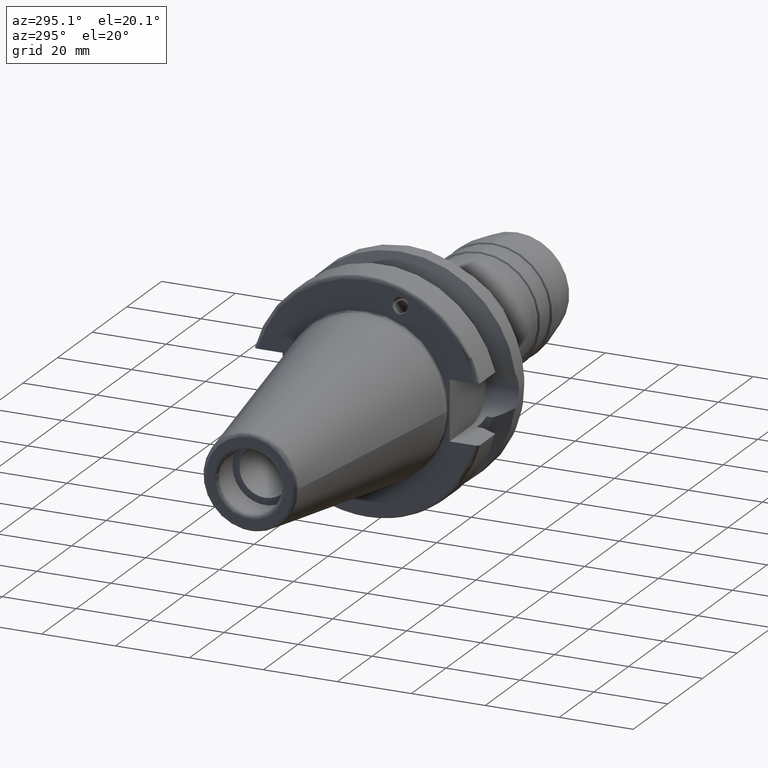
[diagram: clean part render]
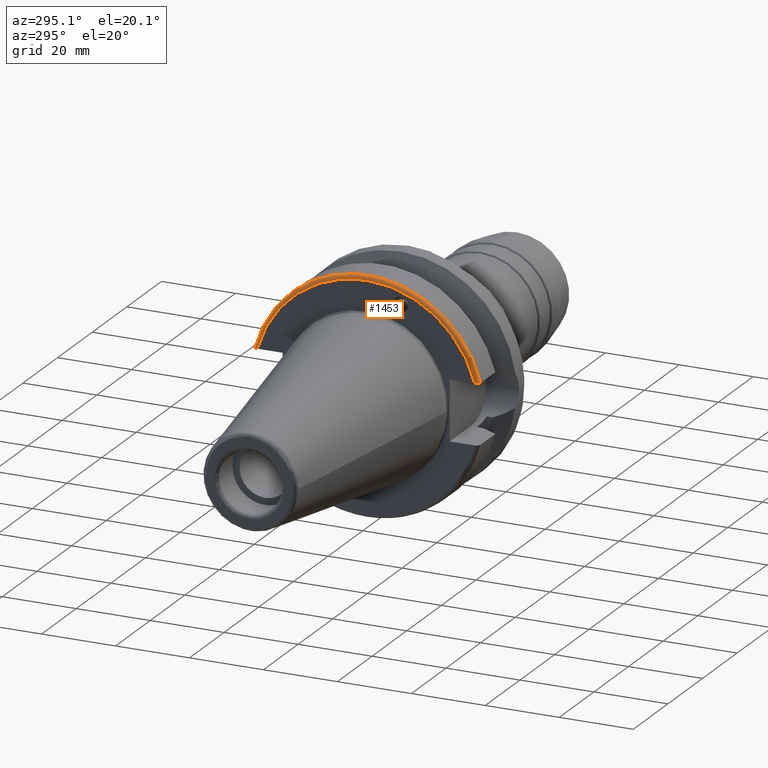
[diagram: same view with one face highlighted and labeled with its STEP entity id]
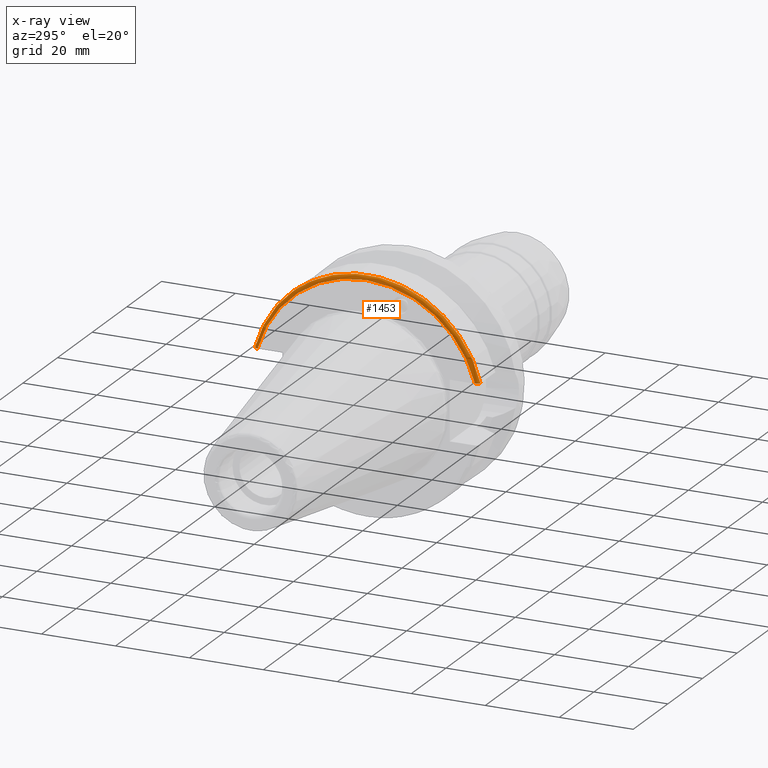
[diagram: x-ray of the same camera — body ghosted, the highlighted face saturated]
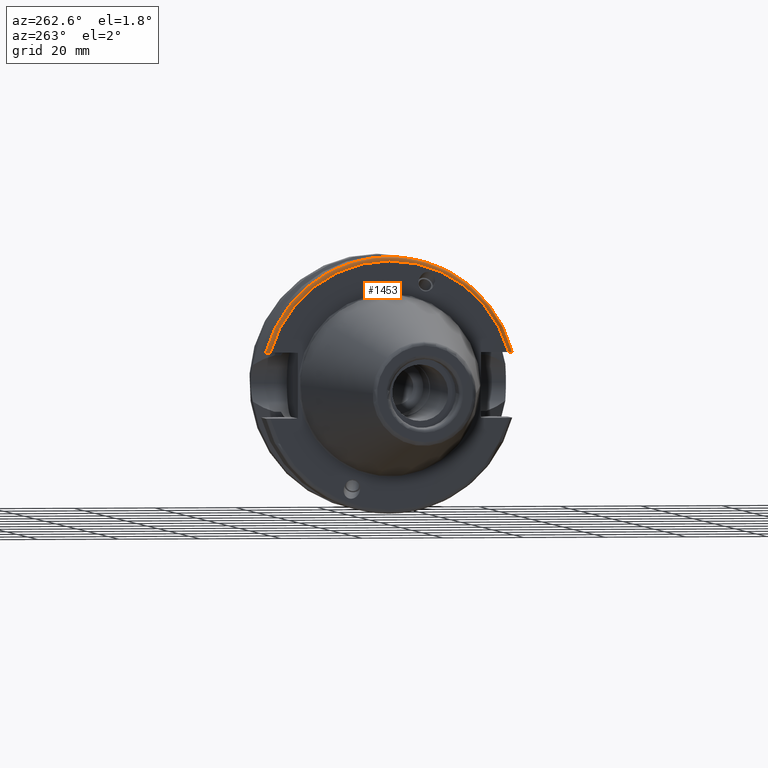
[diagram: same view with one face highlighted and labeled with its STEP entity id]
A machine part, auxiliary view. The second image highlights one B-rep face of the part: STEP entity #1453.
The next image is the same camera in x-ray: the body ghosted, the highlighted face saturated — about 0% of this face is hidden behind the body in this view.
A second angle (auxiliary view) of the same face is appended — the face is thin or edge-on in the first view.
In plain terms, the highlighted toroidal blend (fillet) surface has major radius 30.5 mm and minor (blend) radius 1 mm.
Its self-contained STEP definition (entity closure, byte-faithful):
#73=TOROIDAL_SURFACE('',#1672,30.5,1.00000000000001);
#189=FACE_OUTER_BOUND('',#292,.T.);
#292=EDGE_LOOP('',(#1306,#1307,#1308,#1309));
#316=B_SPLINE_CURVE_WITH_KNOTS('',3,(#2615,#2616,#2617,#2618,#2619,#2620,
#2621,#2622,#2623,#2624),.UNSPECIFIED.,.F.,.F.,(4,2,2,2,4),(-0.150751871388631,
-0.111946181815504,-0.0738743445372396,-0.0366169489027566,0.),
 .UNSPECIFIED.);
#324=B_SPLINE_CURVE_WITH_KNOTS('',3,(#2756,#2757,#2758,#2759,#2760,#2761,
#2762,#2763,#2764,#2765),.UNSPECIFIED.,.F.,.F.,(4,2,2,2,4),(0.,0.0366169489027566,
0.0738743445372396,0.111946181815504,0.150751871388631),.UNSPECIFIED.);
#556=CIRCLE('',#1671,30.5);
#557=CIRCLE('',#1673,31.5);
#650=VERTEX_POINT('',#2612);
#651=VERTEX_POINT('',#2614);
#678=VERTEX_POINT('',#2753);
#679=VERTEX_POINT('',#2755);
#832=EDGE_CURVE('',#651,#650,#316,.T.);
#873=EDGE_CURVE('',#679,#678,#324,.T.);
#904=EDGE_CURVE('',#678,#651,#556,.T.);
#905=EDGE_CURVE('',#679,#650,#557,.T.);
#1306=ORIENTED_EDGE('',*,*,#832,.T.);
#1307=ORIENTED_EDGE('',*,*,#905,.F.);
#1308=ORIENTED_EDGE('',*,*,#873,.T.);
#1309=ORIENTED_EDGE('',*,*,#904,.T.);
#1453=ADVANCED_FACE('',(#189),#73,.T.);
#1671=AXIS2_PLACEMENT_3D('',#2830,#2134,#2135);
#1672=AXIS2_PLACEMENT_3D('',#2831,#2136,#2137);
#1673=AXIS2_PLACEMENT_3D('',#2832,#2138,#2139);
#2134=DIRECTION('center_axis',(1.,0.,0.));
#2135=DIRECTION('ref_axis',(0.,0.,-1.));
#2136=DIRECTION('center_axis',(1.,0.,0.));
#2137=DIRECTION('ref_axis',(0.,-1.22464679914735E-16,1.));
#2138=DIRECTION('center_axis',(1.,0.,0.));
#2139=DIRECTION('ref_axis',(0.,0.,-1.));
#2612=CARTESIAN_POINT('',(2.99999999999999,-30.4540227227866,8.05));
#2614=CARTESIAN_POINT('',(1.99999999999999,-29.4184890842477,8.05));
#2615=CARTESIAN_POINT('Ctrl Pts',(1.99999999999999,-29.4184890842477,8.05));
#2616=CARTESIAN_POINT('Ctrl Pts',(1.99999999999999,-29.5478413828248,8.05));
#2617=CARTESIAN_POINT('Ctrl Pts',(2.02950258743517,-29.7002346307938,8.05));
#2618=CARTESIAN_POINT('Ctrl Pts',(2.12587454939785,-29.9376810968085,8.05));
#2619=CARTESIAN_POINT('Ctrl Pts',(2.2089547883793,-30.0653098968133,8.05));
#2620=CARTESIAN_POINT('Ctrl Pts',(2.38465986426588,-30.2446912007727,8.05));
#2621=CARTESIAN_POINT('Ctrl Pts',(2.50758665841081,-30.3289456947341,8.05));
#2622=CARTESIAN_POINT('Ctrl Pts',(2.73442803339431,-30.4247631098996,8.05));
#2623=CARTESIAN_POINT('Ctrl Pts',(2.87794350365748,-30.4540227227866,8.05));
#2624=CARTESIAN_POINT('Ctrl Pts',(3.,-30.4540227227866,8.05));
#2753=CARTESIAN_POINT('',(1.99999999999999,29.4184890842477,8.05));
#2755=CARTESIAN_POINT('',(2.99999999999999,30.4540227227866,8.05));
#2756=CARTESIAN_POINT('Ctrl Pts',(3.,30.4540227227866,8.05));
#2757=CARTESIAN_POINT('Ctrl Pts',(2.87794350365748,30.4540227227866,8.05));
#2758=CARTESIAN_POINT('Ctrl Pts',(2.73442803339431,30.4247631098996,8.05));
#2759=CARTESIAN_POINT('Ctrl Pts',(2.50758665841081,30.3289456947341,8.05));
#2760=CARTESIAN_POINT('Ctrl Pts',(2.38465986426588,30.2446912007727,8.05));
#2761=CARTESIAN_POINT('Ctrl Pts',(2.2089547883793,30.0653098968133,8.05));
#2762=CARTESIAN_POINT('Ctrl Pts',(2.12587454939785,29.9376810968085,8.05));
#2763=CARTESIAN_POINT('Ctrl Pts',(2.02950258743517,29.7002346307938,8.05));
#2764=CARTESIAN_POINT('Ctrl Pts',(1.99999999999999,29.5478413828248,8.05));
#2765=CARTESIAN_POINT('Ctrl Pts',(1.99999999999999,29.4184890842477,8.05));
#2830=CARTESIAN_POINT('Origin',(1.99999999999999,0.,0.));
#2831=CARTESIAN_POINT('Origin',(3.,0.,0.));
#2832=CARTESIAN_POINT('Origin',(2.99999999999999,0.,0.));